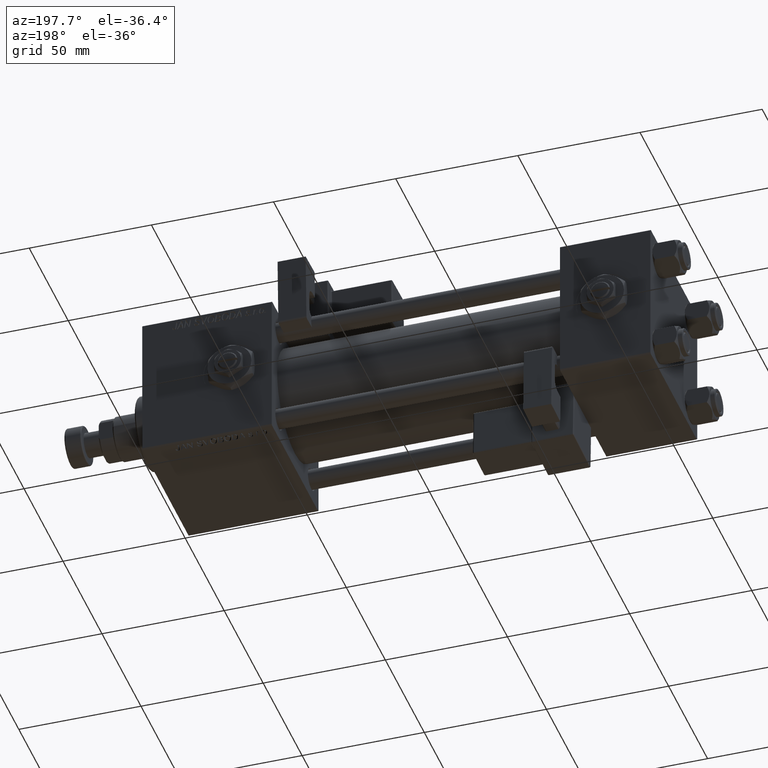
[diagram: clean part render]
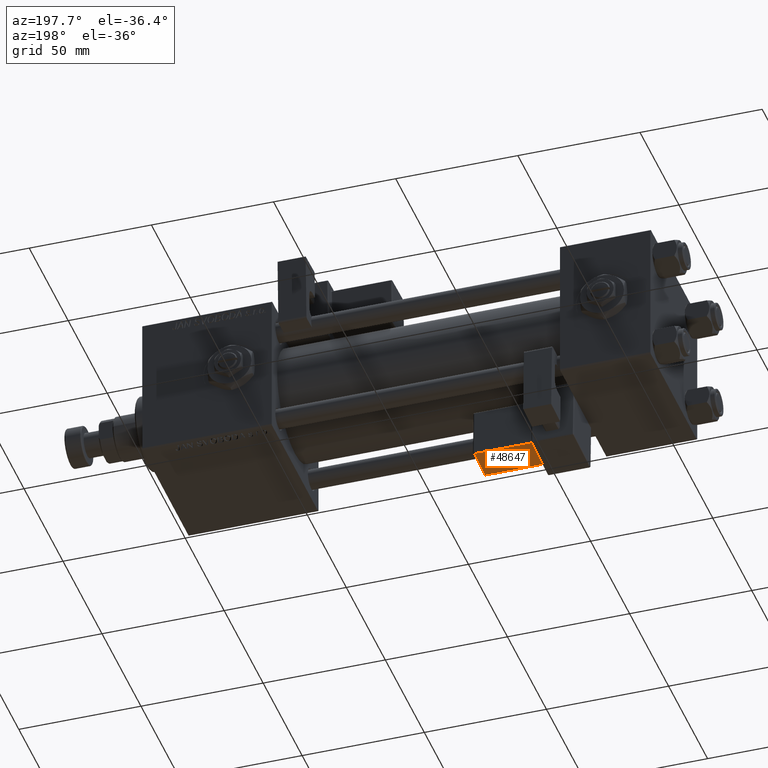
[diagram: same view with one face highlighted and labeled with its STEP entity id]
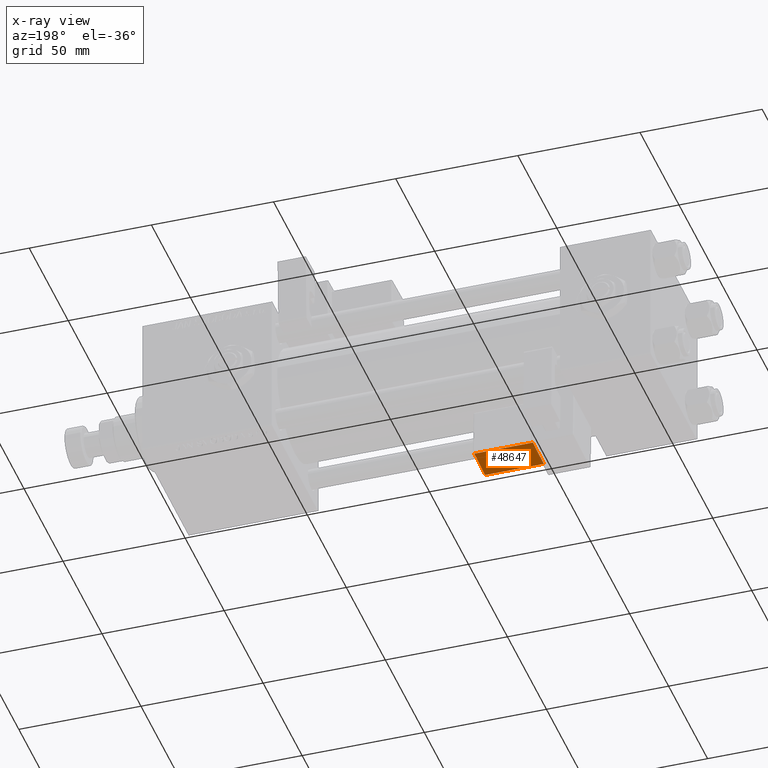
[diagram: x-ray of the same camera — body ghosted, the highlighted face saturated]
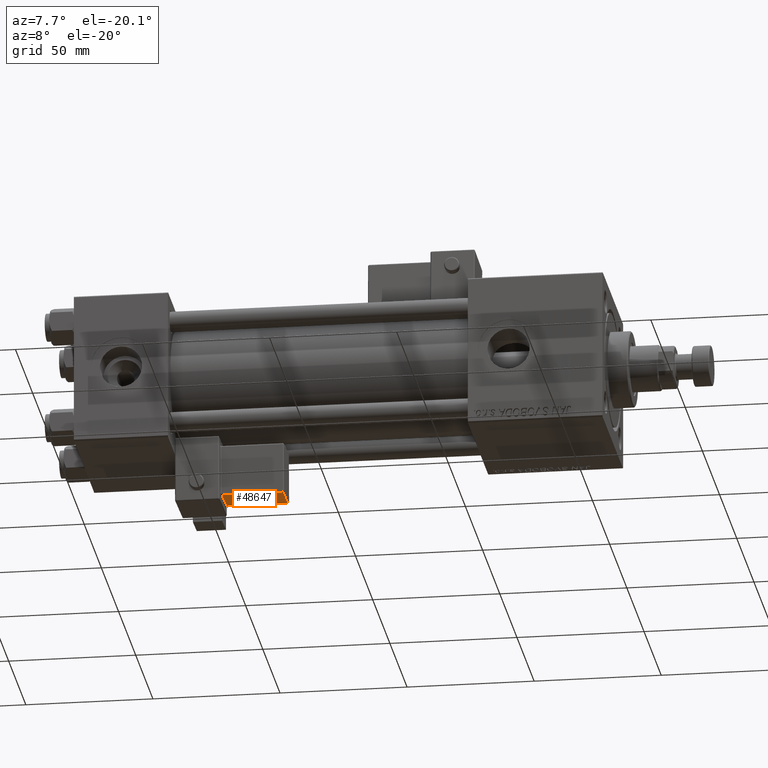
[diagram: same view with one face highlighted and labeled with its STEP entity id]
A machine part, auxiliary view. The second image highlights one B-rep face of the part: STEP entity #48647.
The next image is the same camera in x-ray: the body ghosted, the highlighted face saturated — about 0% of this face is hidden behind the body in this view.
A second angle (auxiliary view) of the same face is appended — the face is thin or edge-on in the first view.
In plain terms, the highlighted planar face has unit normal (-0, -0.0353, 0.9994).
Its self-contained STEP definition (entity closure, byte-faithful):
#1361 = EDGE_CURVE ( 'NONE', #16702, #25884, #5138, .T. ) ;
#2956 = VECTOR ( 'NONE', #46380, 1000.000000000000000 ) ;
#3361 = LINE ( 'NONE', #28642, #2956 ) ;
#3548 = VECTOR ( 'NONE', #10118, 1000.000000000000000 ) ;
#5138 = LINE ( 'NONE', #52843, #3548 ) ;
#5790 = DIRECTION ( 'NONE',  ( -1.334402673828313339E-16, -1.156482317317871725E-16, 1.000000000000000000 ) ) ;
#6974 = CARTESIAN_POINT ( 'NONE',  ( 33.25000000000000000, -31.74999999999999289, 2.000000000000008438 ) ) ;
#8837 = EDGE_CURVE ( 'NONE', #31630, #16702, #3361, .T. ) ;
#8942 = AXIS2_PLACEMENT_3D ( 'NONE', #44615, #5790, #39936 ) ;
#10118 = DIRECTION ( 'NONE',  ( 5.473822126268816683E-48, -1.000000000000000000, -1.156482317317871725E-16 ) ) ;
#10806 = CARTESIAN_POINT ( 'NONE',  ( 9.250000000000005329, -31.74999999999999289, 2.000000000000005329 ) ) ;
#10967 = ORIENTED_EDGE ( 'NONE', *, *, #37991, .T. ) ;
#15714 = VECTOR ( 'NONE', #52710, 1000.000000000000000 ) ;
#16275 = CARTESIAN_POINT ( 'NONE',  ( 9.250000000000005329, -17.24999999999999289, 2.000000000000007105 ) ) ;
#16702 = VERTEX_POINT ( 'NONE', #29020 ) ;
#22170 = EDGE_LOOP ( 'NONE', ( #34641, #54890, #10967, #40937 ) ) ;
#22787 = VECTOR ( 'NONE', #33767, 1000.000000000000000 ) ;
#23253 = PLANE ( 'NONE',  #8942 ) ;
#25884 = VERTEX_POINT ( 'NONE', #6974 ) ;
#27184 = LINE ( 'NONE', #51902, #15714 ) ;
#28261 = VERTEX_POINT ( 'NONE', #10806 ) ;
#28642 = CARTESIAN_POINT ( 'NONE',  ( 33.75000000000000000, -17.74999999999999645, 2.000000000000010214 ) ) ;
#29020 = CARTESIAN_POINT ( 'NONE',  ( 33.25000000000000000, -17.74999999999999645, 2.000000000000010214 ) ) ;
#31630 = VERTEX_POINT ( 'NONE', #36455 ) ;
#33767 = DIRECTION ( 'NONE',  ( -1.543213096464132036E-32, 1.000000000000000000, 1.156482317317871725E-16 ) ) ;
#34641 = ORIENTED_EDGE ( 'NONE', *, *, #1361, .T. ) ;
#34954 = FACE_OUTER_BOUND ( 'NONE', #22170, .T. ) ;
#36455 = CARTESIAN_POINT ( 'NONE',  ( 9.250000000000005329, -17.74999999999999645, 2.000000000000006661 ) ) ;
#37323 = EDGE_CURVE ( 'NONE', #25884, #28261, #27184, .T. ) ;
#37991 = EDGE_CURVE ( 'NONE', #28261, #31630, #54299, .T. ) ;
#39936 = DIRECTION ( 'NONE',  ( 1.000000000000000000, 0.000000000000000000, 1.334402673828313339E-16 ) ) ;
#40937 = ORIENTED_EDGE ( 'NONE', *, *, #8837, .T. ) ;
#44615 = CARTESIAN_POINT ( 'NONE',  ( 33.75000000000000000, -17.24999999999999289, 2.000000000000010214 ) ) ;
#46380 = DIRECTION ( 'NONE',  ( 1.000000000000000000, -0.000000000000000000, 1.334402673828313339E-16 ) ) ;
#48647 = ADVANCED_FACE ( 'NONE', ( #34954 ), #23253, .F. ) ;
#51902 = CARTESIAN_POINT ( 'NONE',  ( 33.75000000000000000, -31.74999999999999289, 2.000000000000008438 ) ) ;
#52710 = DIRECTION ( 'NONE',  ( -1.000000000000000000, 0.000000000000000000, -1.334402673828313339E-16 ) ) ;
#52843 = CARTESIAN_POINT ( 'NONE',  ( 33.25000000000000000, -32.24999999999999289, 2.000000000000008438 ) ) ;
#54299 = LINE ( 'NONE', #16275, #22787 ) ;
#54890 = ORIENTED_EDGE ( 'NONE', *, *, #37323, .T. ) ;